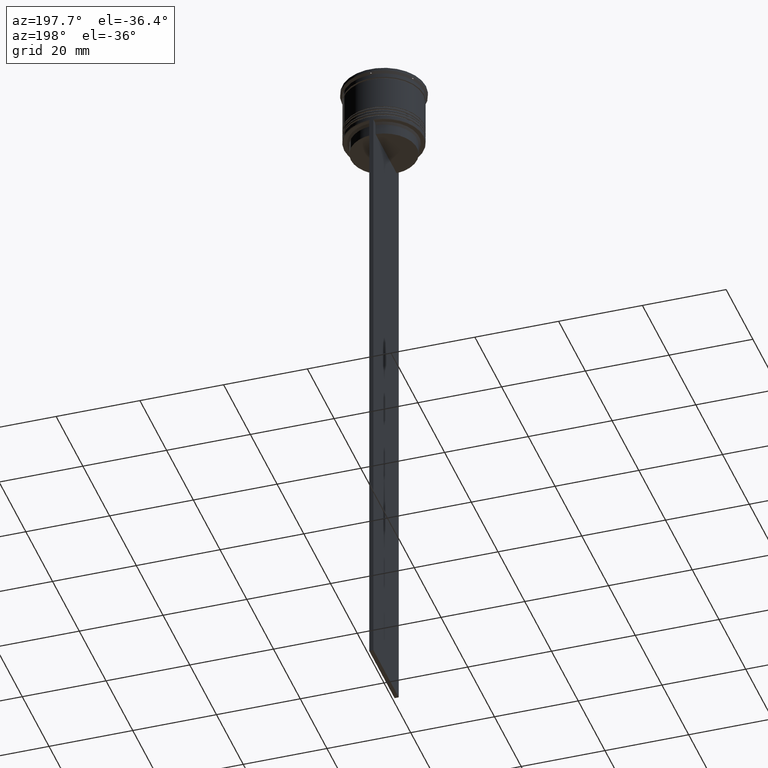
[diagram: clean part render]
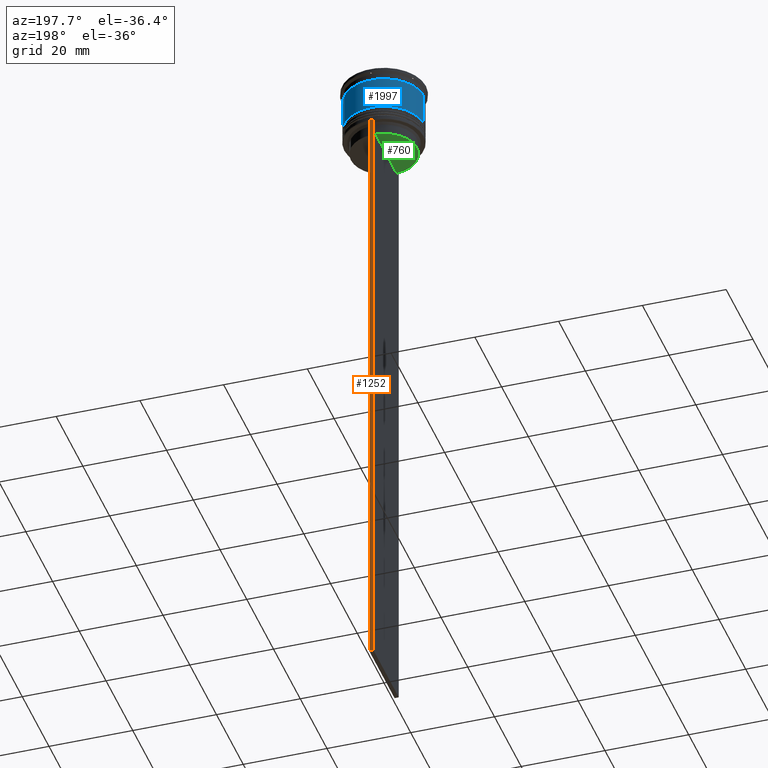
[diagram: same view with three faces highlighted in distinct colors, each labeled with its STEP entity id]
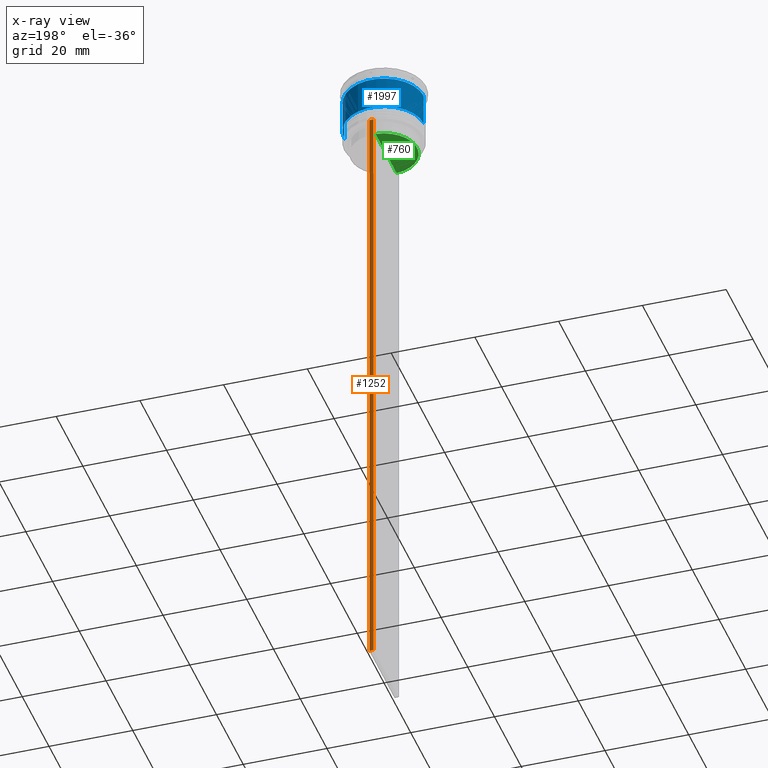
[diagram: x-ray of the same camera — body ghosted, the three highlighted faces saturated]
A machine part, auxiliary view with three faces highlighted in distinct colors.
The next image is the same camera in x-ray (body ghosted, the three faces saturated) — at least one of them is partly hidden behind the body in this view.
Their STEP definitions:

[orange] entity #1252 — the highlighted planar face has unit normal (0, -1, -0).
#28 = CARTESIAN_POINT ( 'NONE',  ( -0.5000000000000000000, 9.499999999999998224, -163.9999999999999716 ) ) ;
#136 = AXIS2_PLACEMENT_3D ( 'NONE', #1694, #796, #187 ) ;
#187 = DIRECTION ( 'NONE',  ( 0.000000000000000000, 0.000000000000000000, -1.000000000000000000 ) ) ;
#281 = EDGE_LOOP ( 'NONE', ( #2508, #2282, #2661, #2543 ) ) ;
#591 = EDGE_CURVE ( 'NONE', #2379, #832, #1503, .T. ) ;
#626 = VERTEX_POINT ( 'NONE', #1898 ) ;
#649 = EDGE_CURVE ( 'NONE', #2379, #626, #733, .T. ) ;
#723 = DIRECTION ( 'NONE',  ( 0.000000000000000000, 0.000000000000000000, -1.000000000000000000 ) ) ;
#733 = LINE ( 'NONE', #2032, #774 ) ;
#740 = VECTOR ( 'NONE', #2671, 1000.000000000000000 ) ;
#774 = VECTOR ( 'NONE', #1597, 1000.000000000000000 ) ;
#796 = DIRECTION ( 'NONE',  ( 0.000000000000000000, -1.000000000000000000, -0.000000000000000000 ) ) ;
#811 = CARTESIAN_POINT ( 'NONE',  ( 0.5000000000000000000, 9.499999999999998224, 5.026297590440445440 ) ) ;
#825 = EDGE_CURVE ( 'NONE', #626, #2367, #2659, .T. ) ;
#832 = VERTEX_POINT ( 'NONE', #28 ) ;
#854 = FACE_OUTER_BOUND ( 'NONE', #281, .T. ) ;
#1073 = EDGE_CURVE ( 'NONE', #2367, #832, #1998, .T. ) ;
#1252 = ADVANCED_FACE ( 'NONE', ( #854 ), #1833, .F. ) ;
#1293 = CARTESIAN_POINT ( 'NONE',  ( 0.5000000000000000000, 9.499999999999998224, -163.9999999999999716 ) ) ;
#1503 = LINE ( 'NONE', #1966, #2386 ) ;
#1597 = DIRECTION ( 'NONE',  ( 1.000000000000000000, 0.000000000000000000, 0.000000000000000000 ) ) ;
#1694 = CARTESIAN_POINT ( 'NONE',  ( 0.5000000000000000000, 9.499999999999998224, 5.026297590440445440 ) ) ;
#1791 = VECTOR ( 'NONE', #2237, 1000.000000000000000 ) ;
#1833 = PLANE ( 'NONE',  #136 ) ;
#1898 = CARTESIAN_POINT ( 'NONE',  ( 0.5000000000000000000, 9.499999999999998224, -14.00000000000000178 ) ) ;
#1910 = CARTESIAN_POINT ( 'NONE',  ( -0.5000000000000000000, 9.499999999999994671, -14.00000000000000178 ) ) ;
#1966 = CARTESIAN_POINT ( 'NONE',  ( -0.5000000000000000000, 9.499999999999998224, 5.026297590440445440 ) ) ;
#1998 = LINE ( 'NONE', #2012, #1791 ) ;
#2012 = CARTESIAN_POINT ( 'NONE',  ( 0.5000000000000000000, 9.499999999999998224, -163.9999999999999716 ) ) ;
#2032 = CARTESIAN_POINT ( 'NONE',  ( 0.5000000000000000000, 9.499999999999998224, -14.00000000000000178 ) ) ;
#2237 = DIRECTION ( 'NONE',  ( -1.000000000000000000, 0.000000000000000000, 0.000000000000000000 ) ) ;
#2282 = ORIENTED_EDGE ( 'NONE', *, *, #649, .T. ) ;
#2367 = VERTEX_POINT ( 'NONE', #1293 ) ;
#2379 = VERTEX_POINT ( 'NONE', #1910 ) ;
#2386 = VECTOR ( 'NONE', #723, 1000.000000000000000 ) ;
#2508 = ORIENTED_EDGE ( 'NONE', *, *, #591, .F. ) ;
#2543 = ORIENTED_EDGE ( 'NONE', *, *, #1073, .T. ) ;
#2659 = LINE ( 'NONE', #811, #740 ) ;
#2661 = ORIENTED_EDGE ( 'NONE', *, *, #825, .T. ) ;
#2671 = DIRECTION ( 'NONE',  ( 0.000000000000000000, 0.000000000000000000, -1.000000000000000000 ) ) ;

[blue] entity #1997 — the highlighted cylindrical surface (partial cylindrical patch) has radius 9.5 mm, axis along (-0, -0, 1).
#102 = CARTESIAN_POINT ( 'NONE',  ( 0.000000000000000000, 0.000000000000000000, -2.700000000000001066 ) ) ;
#112 = DIRECTION ( 'NONE',  ( 1.000000000000000000, 0.000000000000000000, 0.000000000000000000 ) ) ;
#141 = VERTEX_POINT ( 'NONE', #2363 ) ;
#227 = CIRCLE ( 'NONE', #1183, 9.500000000000001776 ) ;
#287 = LINE ( 'NONE', #1124, #1227 ) ;
#341 = DIRECTION ( 'NONE',  ( -0.000000000000000000, -0.000000000000000000, 1.000000000000000000 ) ) ;
#545 = EDGE_CURVE ( 'NONE', #141, #1214, #1217, .T. ) ;
#659 = VECTOR ( 'NONE', #707, 1000.000000000000000 ) ;
#707 = DIRECTION ( 'NONE',  ( -0.000000000000000000, -0.000000000000000000, 1.000000000000000000 ) ) ;
#766 = CARTESIAN_POINT ( 'NONE',  ( 0.000000000000000000, 0.000000000000000000, -10.50000000000000000 ) ) ;
#876 = ORIENTED_EDGE ( 'NONE', *, *, #2163, .F. ) ;
#993 = EDGE_LOOP ( 'NONE', ( #1686, #1187, #1366, #876 ) ) ;
#1008 = FACE_OUTER_BOUND ( 'NONE', #993, .T. ) ;
#1014 = EDGE_CURVE ( 'NONE', #2554, #1214, #2523, .T. ) ;
#1036 = CYLINDRICAL_SURFACE ( 'NONE', #1667, 9.500000000000000000 ) ;
#1046 = AXIS2_PLACEMENT_3D ( 'NONE', #102, #1700, #112 ) ;
#1124 = CARTESIAN_POINT ( 'NONE',  ( 9.500000000000000000, 0.000000000000000000, 0.000000000000000000 ) ) ;
#1183 = AXIS2_PLACEMENT_3D ( 'NONE', #766, #341, #2641 ) ;
#1187 = ORIENTED_EDGE ( 'NONE', *, *, #1014, .T. ) ;
#1214 = VERTEX_POINT ( 'NONE', #2264 ) ;
#1217 = CIRCLE ( 'NONE', #1046, 9.499999999999998224 ) ;
#1227 = VECTOR ( 'NONE', #2405, 1000.000000000000000 ) ;
#1245 = DIRECTION ( 'NONE',  ( -0.000000000000000000, -0.000000000000000000, 1.000000000000000000 ) ) ;
#1313 = CARTESIAN_POINT ( 'NONE',  ( 9.500000000000001776, 0.000000000000000000, -10.50000000000000000 ) ) ;
#1366 = ORIENTED_EDGE ( 'NONE', *, *, #545, .F. ) ;
#1519 = CARTESIAN_POINT ( 'NONE',  ( -9.500000000000000000, 1.163414459189985485E-15, 0.000000000000000000 ) ) ;
#1667 = AXIS2_PLACEMENT_3D ( 'NONE', #2649, #1245, #1698 ) ;
#1686 = ORIENTED_EDGE ( 'NONE', *, *, #2259, .T. ) ;
#1698 = DIRECTION ( 'NONE',  ( 1.000000000000000000, 0.000000000000000000, 0.000000000000000000 ) ) ;
#1700 = DIRECTION ( 'NONE',  ( -0.000000000000000000, -0.000000000000000000, 1.000000000000000000 ) ) ;
#1997 = ADVANCED_FACE ( 'NONE', ( #1008 ), #1036, .T. ) ;
#2098 = VERTEX_POINT ( 'NONE', #1313 ) ;
#2163 = EDGE_CURVE ( 'NONE', #2098, #141, #287, .T. ) ;
#2259 = EDGE_CURVE ( 'NONE', #2098, #2554, #227, .T. ) ;
#2264 = CARTESIAN_POINT ( 'NONE',  ( -9.499999999999998224, 1.163414459189985485E-15, -2.700000000000001066 ) ) ;
#2363 = CARTESIAN_POINT ( 'NONE',  ( 9.499999999999998224, 0.000000000000000000, -2.700000000000001066 ) ) ;
#2373 = CARTESIAN_POINT ( 'NONE',  ( -9.500000000000001776, 1.163414459189985682E-15, -10.50000000000000000 ) ) ;
#2405 = DIRECTION ( 'NONE',  ( -0.000000000000000000, -0.000000000000000000, 1.000000000000000000 ) ) ;
#2523 = LINE ( 'NONE', #1519, #659 ) ;
#2554 = VERTEX_POINT ( 'NONE', #2373 ) ;
#2641 = DIRECTION ( 'NONE',  ( 1.000000000000000000, 0.000000000000000000, 0.000000000000000000 ) ) ;
#2649 = CARTESIAN_POINT ( 'NONE',  ( 0.000000000000000000, 0.000000000000000000, 0.000000000000000000 ) ) ;

[green] entity #760 — the highlighted planar face has unit normal (0, -0, 1).
#72 = EDGE_LOOP ( 'NONE', ( #1778, #2529 ) ) ;
#125 = EDGE_CURVE ( 'NONE', #1579, #1840, #1074, .T. ) ;
#133 = AXIS2_PLACEMENT_3D ( 'NONE', #359, #334, #1820 ) ;
#267 = DIRECTION ( 'NONE',  ( 0.000000000000000000, -1.000000000000000000, 0.000000000000000000 ) ) ;
#334 = DIRECTION ( 'NONE',  ( 0.000000000000000000, -0.000000000000000000, 1.000000000000000000 ) ) ;
#359 = CARTESIAN_POINT ( 'NONE',  ( 0.000000000000000000, 7.899999999999994138, -17.00000000000000000 ) ) ;
#650 = CARTESIAN_POINT ( 'NONE',  ( -0.5000000000000000000, 7.899999999999994138, -17.00000000000000000 ) ) ;
#675 = DIRECTION ( 'NONE',  ( 1.000000000000000000, 0.000000000000000000, 0.000000000000000000 ) ) ;
#735 = VECTOR ( 'NONE', #267, 1000.000000000000000 ) ;
#753 = CARTESIAN_POINT ( 'NONE',  ( -0.5000000000000000000, 7.884161337770803080, -17.00000000000000000 ) ) ;
#758 = FACE_OUTER_BOUND ( 'NONE', #72, .T. ) ;
#760 = ADVANCED_FACE ( 'NONE', ( #758 ), #1810, .F. ) ;
#851 = CARTESIAN_POINT ( 'NONE',  ( -0.5000000000000000000, -7.884161337770803080, -17.00000000000000000 ) ) ;
#1074 = LINE ( 'NONE', #650, #735 ) ;
#1475 = DIRECTION ( 'NONE',  ( -0.000000000000000000, -0.000000000000000000, 1.000000000000000000 ) ) ;
#1579 = VERTEX_POINT ( 'NONE', #753 ) ;
#1778 = ORIENTED_EDGE ( 'NONE', *, *, #2412, .F. ) ;
#1810 = PLANE ( 'NONE',  #133 ) ;
#1820 = DIRECTION ( 'NONE',  ( 1.000000000000000000, 0.000000000000000000, 0.000000000000000000 ) ) ;
#1840 = VERTEX_POINT ( 'NONE', #851 ) ;
#2072 = CARTESIAN_POINT ( 'NONE',  ( 0.000000000000000000, 0.000000000000000000, -17.00000000000000000 ) ) ;
#2180 = AXIS2_PLACEMENT_3D ( 'NONE', #2072, #1475, #675 ) ;
#2412 = EDGE_CURVE ( 'NONE', #1579, #1840, #2480, .T. ) ;
#2480 = CIRCLE ( 'NONE', #2180, 7.899999999999994138 ) ;
#2529 = ORIENTED_EDGE ( 'NONE', *, *, #125, .T. ) ;